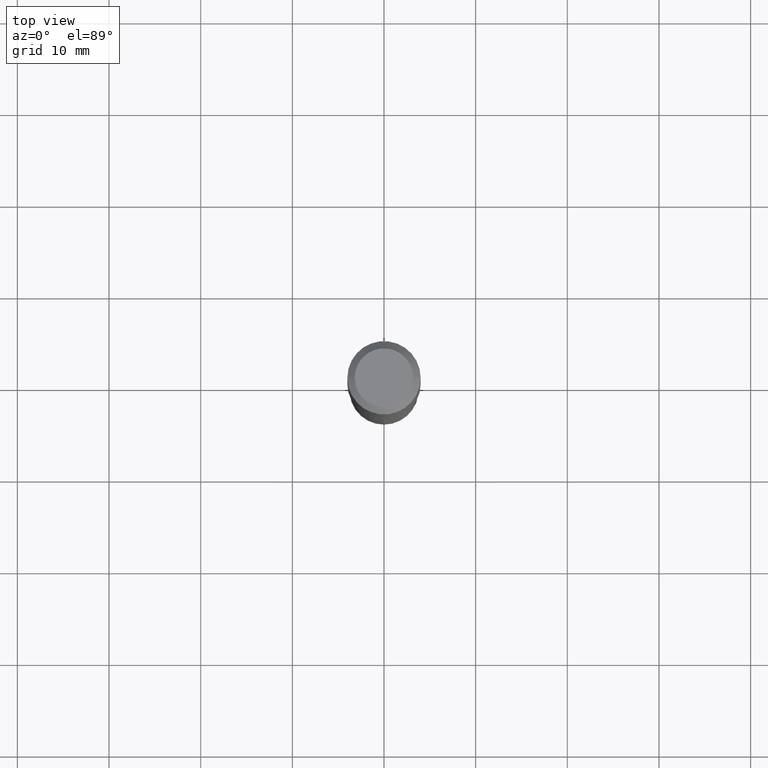
[diagram: clean part render]
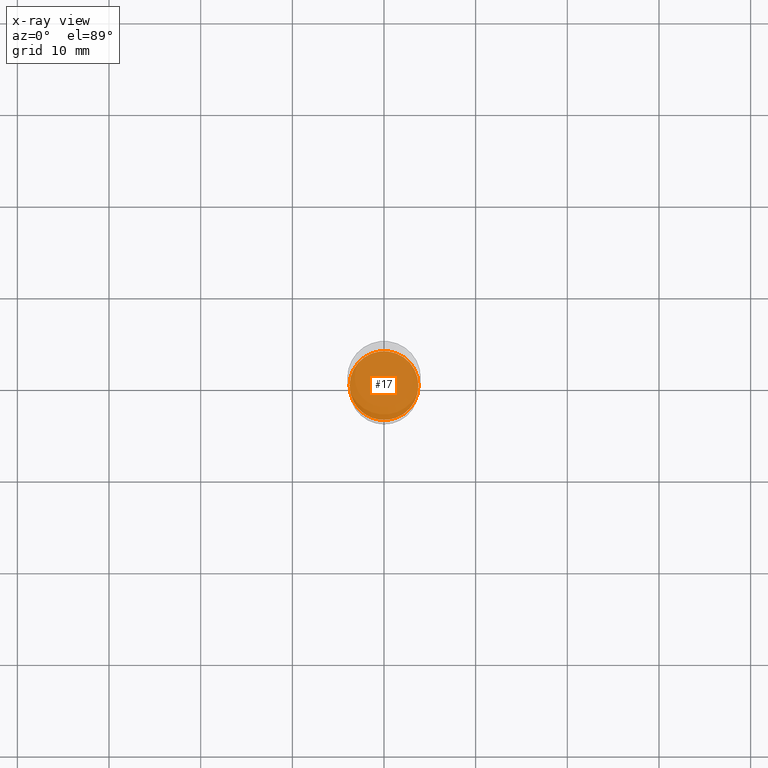
[diagram: x-ray — body ghosted, one internal face saturated and labeled with its STEP entity id]
A machine part, top view, then the same camera in x-ray: the body is ghosted and one INTERNAL B-rep face — a face not visible from any outside direction — is saturated and labeled: STEP entity #17.
In plain terms, the highlighted planar face has unit normal (-0, 0, 1).
Its self-contained STEP definition (entity closure, byte-faithful):
#11 = DIRECTION ( 'NONE',  ( 1.000000000000000000, -6.982962677686265922E-15, 4.876176775795935793E-29 ) ) ;
#17 = ADVANCED_FACE ( 'NONE', ( #357 ), #451, .F. ) ;
#36 = AXIS2_PLACEMENT_3D ( 'NONE', #490, #481, #119 ) ;
#42 = CIRCLE ( 'NONE', #36, 0.1479499999999999982 ) ;
#61 = ORIENTED_EDGE ( 'NONE', *, *, #229, .F. ) ;
#119 = DIRECTION ( 'NONE',  ( 1.000000000000000000, -6.982962677686265133E-15, 0.000000000000000000 ) ) ;
#128 = CARTESIAN_POINT ( 'NONE',  ( 4.813905344975441835E-29, -6.872981015512731707E-15, -1.968500000000000139 ) ) ;
#139 = EDGE_LOOP ( 'NONE', ( #231, #61 ) ) ;
#187 = EDGE_CURVE ( 'NONE', #440, #418, #207, .T. ) ;
#207 = CIRCLE ( 'NONE', #467, 0.1479499999999999982 ) ;
#229 = EDGE_CURVE ( 'NONE', #418, #440, #42, .T. ) ;
#231 = ORIENTED_EDGE ( 'NONE', *, *, #187, .F. ) ;
#239 = DIRECTION ( 'NONE',  ( 1.000000000000000000, -6.982962677686265133E-15, 0.000000000000000000 ) ) ;
#245 = CARTESIAN_POINT ( 'NONE',  ( 4.813905344975441835E-29, -6.872981015512731707E-15, -1.968500000000000139 ) ) ;
#275 = CARTESIAN_POINT ( 'NONE',  ( -0.1479499999999999982, -5.819083810781552886E-15, -1.968500000000000139 ) ) ;
#311 = CARTESIAN_POINT ( 'NONE',  ( 0.1479499999999999982, -7.906110343676414596E-15, -1.968500000000000139 ) ) ;
#337 = AXIS2_PLACEMENT_3D ( 'NONE', #245, #479, #11 ) ;
#344 = DIRECTION ( 'NONE',  ( -2.445468806185136597E-29, 3.491481338843145583E-15, 1.000000000000000000 ) ) ;
#357 = FACE_OUTER_BOUND ( 'NONE', #139, .T. ) ;
#418 = VERTEX_POINT ( 'NONE', #275 ) ;
#440 = VERTEX_POINT ( 'NONE', #311 ) ;
#451 = PLANE ( 'NONE',  #337 ) ;
#467 = AXIS2_PLACEMENT_3D ( 'NONE', #128, #344, #239 ) ;
#479 = DIRECTION ( 'NONE',  ( -2.438088387897960049E-29, 3.491481338843145188E-15, 1.000000000000000000 ) ) ;
#481 = DIRECTION ( 'NONE',  ( -2.445468806185136597E-29, 3.491481338843145583E-15, 1.000000000000000000 ) ) ;
#490 = CARTESIAN_POINT ( 'NONE',  ( 4.813905344975441835E-29, -6.872981015512731707E-15, -1.968500000000000139 ) ) ;